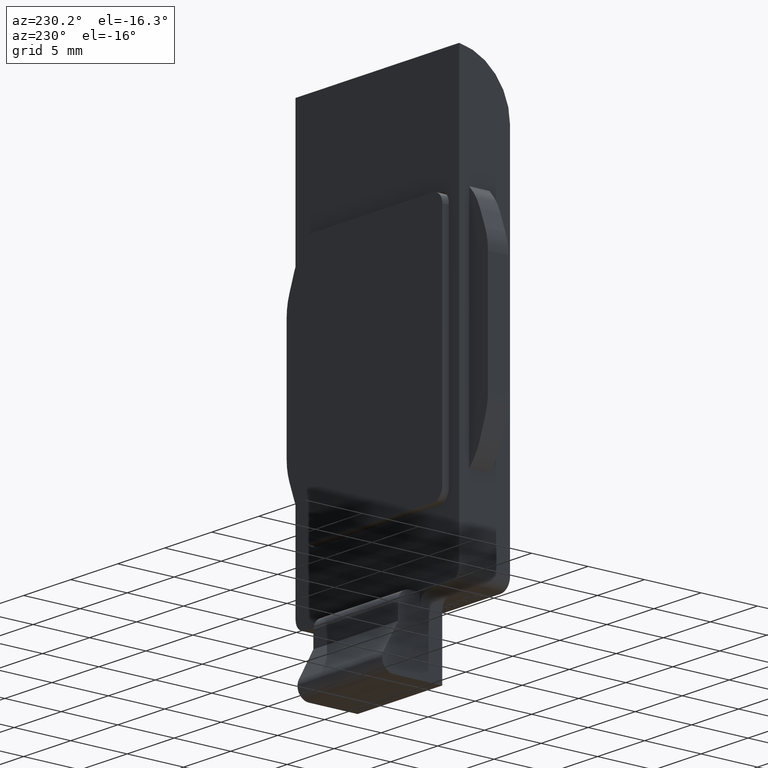
[diagram: clean part render]
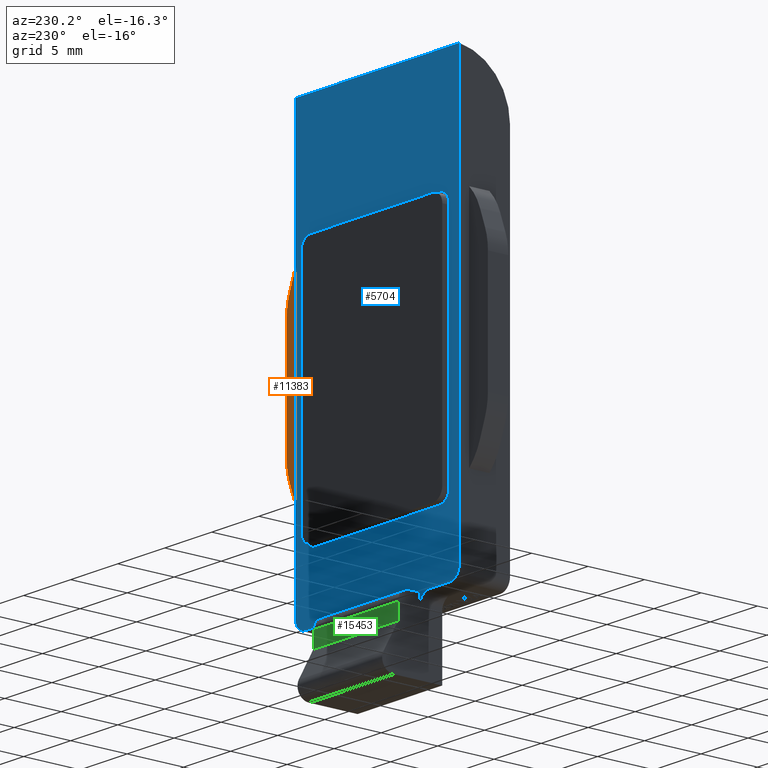
[diagram: same view with three faces highlighted in distinct colors, each labeled with its STEP entity id]
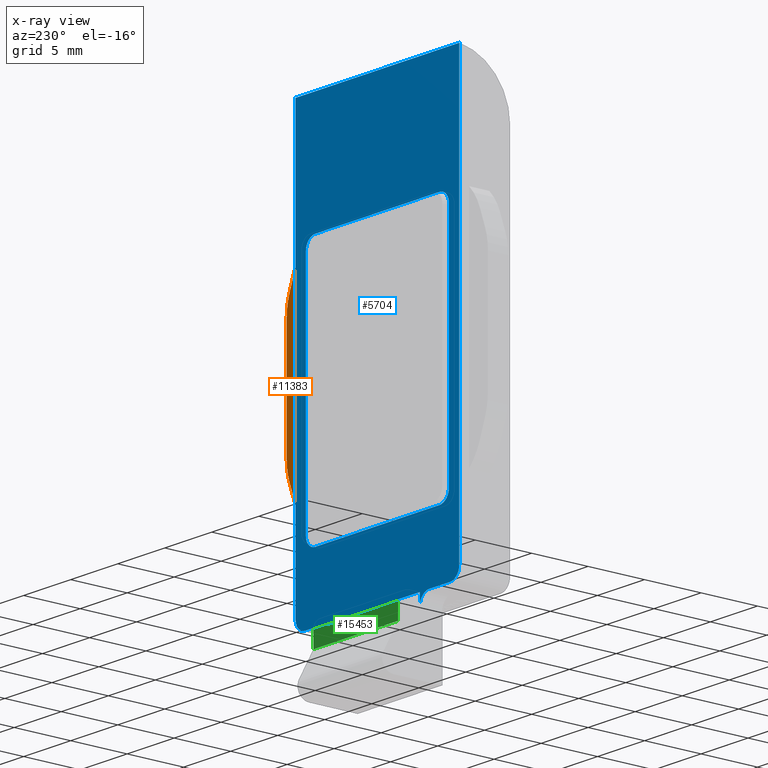
[diagram: x-ray of the same camera — body ghosted, the three highlighted faces saturated]
A machine part, auxiliary view with three faces highlighted in distinct colors.
The next image is the same camera in x-ray (body ghosted, the three faces saturated) — at least one of them is partly hidden behind the body in this view.
Their STEP definitions:

[orange] entity #11383 — the highlighted planar face has unit normal (0, -1, -0).
#83 = CARTESIAN_POINT ( 'NONE',  ( 9.865246063324173420, 3.624999999999998224, 26.17225146263577429 ) ) ;
#1169 = DIRECTION ( 'NONE',  ( 0.000000000000000000, -1.000000000000000000, -1.301042606982605321E-16 ) ) ;
#1218 = EDGE_CURVE ( 'NONE', #3985, #2521, #13917, .T. ) ;
#1343 = VERTEX_POINT ( 'NONE', #1386 ) ;
#1386 = CARTESIAN_POINT ( 'NONE',  ( 8.699999999999999289, 3.624999999999998224, 28.00000000000000000 ) ) ;
#1539 = CIRCLE ( 'NONE', #3640, 5.000000000000000000 ) ;
#1601 = CARTESIAN_POINT ( 'NONE',  ( 10.39846310392953654, 3.624999999999998668, 24.70724968390413068 ) ) ;
#1637 = DIRECTION ( 'NONE',  ( -0.000000000000000000, 1.000000000000000000, 1.301042606982605321E-16 ) ) ;
#2389 = ORIENTED_EDGE ( 'NONE', *, *, #11786, .F. ) ;
#2521 = VERTEX_POINT ( 'NONE', #4234 ) ;
#3001 = CIRCLE ( 'NONE', #5503, 4.999999999999999112 ) ;
#3315 = CARTESIAN_POINT ( 'NONE',  ( 8.699999999999999289, 3.625000000000000444, 8.000000000000000000 ) ) ;
#3610 = FACE_OUTER_BOUND ( 'NONE', #8569, .T. ) ;
#3640 = AXIS2_PLACEMENT_3D ( 'NONE', #5260, #8822, #15218 ) ;
#3739 = CARTESIAN_POINT ( 'NONE',  ( 10.69999999999999929, 3.624999999999999556, 13.00285103272426213 ) ) ;
#3908 = DIRECTION ( 'NONE',  ( -5.377642775528101204E-15, 1.734723475976806848E-16, -1.000000000000000000 ) ) ;
#3985 = VERTEX_POINT ( 'NONE', #11925 ) ;
#4059 = LINE ( 'NONE', #11241, #13192 ) ;
#4127 = CARTESIAN_POINT ( 'NONE',  ( 5.699999999999999289, 3.624999999999999556, 13.00285103272426213 ) ) ;
#4187 = VERTEX_POINT ( 'NONE', #83 ) ;
#4188 = AXIS2_PLACEMENT_3D ( 'NONE', #4981, #1169, #13856 ) ;
#4234 = CARTESIAN_POINT ( 'NONE',  ( 9.865246063324162762, 3.625000000000000444, 9.827748537364218606 ) ) ;
#4981 = CARTESIAN_POINT ( 'NONE',  ( 10.69999999999999929, 3.625000000000000444, 8.000000000000000000 ) ) ;
#5141 = CARTESIAN_POINT ( 'NONE',  ( 5.699999999999999289, 3.624999999999998668, 22.99714896727577695 ) ) ;
#5251 = DIRECTION ( 'NONE',  ( -0.000000000000000000, 1.000000000000000000, 1.301042606982605321E-16 ) ) ;
#5260 = CARTESIAN_POINT ( 'NONE',  ( 5.166782959394620178, 3.625000000000000000, 11.53784925399256700 ) ) ;
#5503 = AXIS2_PLACEMENT_3D ( 'NONE', #4127, #1637, #14232 ) ;
#5765 = ORIENTED_EDGE ( 'NONE', *, *, #8942, .T. ) ;
#6157 = EDGE_CURVE ( 'NONE', #2521, #10023, #1539, .T. ) ;
#6199 = CIRCLE ( 'NONE', #15238, 5.000000000000000888 ) ;
#6261 = ORIENTED_EDGE ( 'NONE', *, *, #10766, .T. ) ;
#7004 = VERTEX_POINT ( 'NONE', #10888 ) ;
#7588 = VECTOR ( 'NONE', #11263, 999.9999999999998863 ) ;
#7645 = DIRECTION ( 'NONE',  ( 0.3420201433256713219, 1.222580137109613705E-16, -0.9396926207859073177 ) ) ;
#7782 = LINE ( 'NONE', #7807, #15889 ) ;
#7807 = CARTESIAN_POINT ( 'NONE',  ( 10.69999999999999929, 3.625000000000000444, 8.000000000000000000 ) ) ;
#8569 = EDGE_LOOP ( 'NONE', ( #9550, #8887, #6261, #11811, #5765, #12422, #2389, #9355 ) ) ;
#8652 = EDGE_CURVE ( 'NONE', #1343, #4187, #14574, .T. ) ;
#8663 = CARTESIAN_POINT ( 'NONE',  ( 10.69999999999999929, 3.625000000000000000, 12.12121612918193314 ) ) ;
#8822 = DIRECTION ( 'NONE',  ( -0.000000000000000000, 1.000000000000000000, 1.301042606982605321E-16 ) ) ;
#8887 = ORIENTED_EDGE ( 'NONE', *, *, #6157, .T. ) ;
#8942 = EDGE_CURVE ( 'NONE', #4187, #14397, #4059, .T. ) ;
#9355 = ORIENTED_EDGE ( 'NONE', *, *, #13476, .T. ) ;
#9550 = ORIENTED_EDGE ( 'NONE', *, *, #1218, .T. ) ;
#9888 = CARTESIAN_POINT ( 'NONE',  ( 8.699999999999999289, 3.625000000000000444, 8.000000000000000000 ) ) ;
#10023 = VERTEX_POINT ( 'NONE', #3315 ) ;
#10378 = VECTOR ( 'NONE', #12434, 1000.000000000000000 ) ;
#10562 = LINE ( 'NONE', #9888, #10378 ) ;
#10766 = EDGE_CURVE ( 'NONE', #10023, #1343, #10562, .T. ) ;
#10888 = CARTESIAN_POINT ( 'NONE',  ( 10.69999999999999929, 3.624999999999998668, 22.99714896727577695 ) ) ;
#10923 = PLANE ( 'NONE',  #4188 ) ;
#11241 = CARTESIAN_POINT ( 'NONE',  ( 10.69999999999999929, 3.624999999999998668, 23.87878387081810772 ) ) ;
#11263 = DIRECTION ( 'NONE',  ( -0.3420201433256697676, 1.222580137109614445E-16, -0.9396926207859080948 ) ) ;
#11383 = ADVANCED_FACE ( 'NONE', ( #3610 ), #10923, .F. ) ;
#11739 = EDGE_CURVE ( 'NONE', #14397, #7004, #6199, .T. ) ;
#11786 = EDGE_CURVE ( 'NONE', #13355, #7004, #7782, .T. ) ;
#11811 = ORIENTED_EDGE ( 'NONE', *, *, #8652, .T. ) ;
#11925 = CARTESIAN_POINT ( 'NONE',  ( 10.39846310392954010, 3.625000000000000000, 11.29275031609591196 ) ) ;
#12422 = ORIENTED_EDGE ( 'NONE', *, *, #11739, .T. ) ;
#12434 = DIRECTION ( 'NONE',  ( 0.000000000000000000, -1.301042606982605321E-16, 1.000000000000000000 ) ) ;
#12818 = AXIS2_PLACEMENT_3D ( 'NONE', #14255, #14205, #13083 ) ;
#13083 = DIRECTION ( 'NONE',  ( 1.734723475976806700E-15, 8.673617379884034239E-17, -1.000000000000000000 ) ) ;
#13192 = VECTOR ( 'NONE', #7645, 1000.000000000000114 ) ;
#13355 = VERTEX_POINT ( 'NONE', #3739 ) ;
#13476 = EDGE_CURVE ( 'NONE', #13355, #3985, #3001, .T. ) ;
#13856 = DIRECTION ( 'NONE',  ( 0.000000000000000000, 1.301042606982605321E-16, -1.000000000000000000 ) ) ;
#13917 = LINE ( 'NONE', #8663, #7588 ) ;
#14205 = DIRECTION ( 'NONE',  ( -0.000000000000000000, 1.000000000000000000, 1.301042606982605321E-16 ) ) ;
#14232 = DIRECTION ( 'NONE',  ( -2.602085213965211036E-15, 1.734723475976807341E-16, -1.000000000000000000 ) ) ;
#14255 = CARTESIAN_POINT ( 'NONE',  ( 5.166782959394637054, 3.624999999999998668, 24.46215074600741701 ) ) ;
#14397 = VERTEX_POINT ( 'NONE', #1601 ) ;
#14574 = CIRCLE ( 'NONE', #12818, 5.000000000000000888 ) ;
#15218 = DIRECTION ( 'NONE',  ( 1.734723475976807094E-15, 8.673617379884035472E-17, -1.000000000000000000 ) ) ;
#15238 = AXIS2_PLACEMENT_3D ( 'NONE', #5141, #5251, #3908 ) ;
#15261 = DIRECTION ( 'NONE',  ( 0.000000000000000000, -1.301042606982605321E-16, 1.000000000000000000 ) ) ;
#15889 = VECTOR ( 'NONE', #15261, 1000.000000000000000 ) ;

[blue] entity #5704 — the highlighted planar face has unit normal (0, -1, -0).
#9 = CARTESIAN_POINT ( 'NONE',  ( 7.600000000000005862, 4.499999999999995559, 27.89999999999999858 ) ) ;
#127 = DIRECTION ( 'NONE',  ( 0.000000000000000000, 0.000000000000000000, -1.000000000000000000 ) ) ;
#235 = CARTESIAN_POINT ( 'NONE',  ( 7.600000000000000533, 4.499999999999999112, 5.700000000000001066 ) ) ;
#241 = CARTESIAN_POINT ( 'NONE',  ( 4.500000000000000000, 4.500000000000000000, -1.000000000000000000 ) ) ;
#266 = CARTESIAN_POINT ( 'NONE',  ( -7.599999999999998757, 4.499999999999995559, 26.89999999999999858 ) ) ;
#279 = ORIENTED_EDGE ( 'NONE', *, *, #13279, .T. ) ;
#485 = DIRECTION ( 'NONE',  ( -1.000000000000000000, -0.000000000000000000, -0.000000000000000000 ) ) ;
#492 = AXIS2_PLACEMENT_3D ( 'NONE', #2516, #5008, #13878 ) ;
#676 = CARTESIAN_POINT ( 'NONE',  ( 7.600000000000000533, 4.499999999999999112, 6.700000000000001066 ) ) ;
#685 = EDGE_CURVE ( 'NONE', #13032, #13445, #1412, .T. ) ;
#687 = ORIENTED_EDGE ( 'NONE', *, *, #5937, .T. ) ;
#745 = EDGE_CURVE ( 'NONE', #9134, #3507, #11533, .T. ) ;
#824 = CIRCLE ( 'NONE', #4680, 1.000000000000000000 ) ;
#1049 = DIRECTION ( 'NONE',  ( 1.860270795296047257E-32, 1.141265444721583757E-16, -1.000000000000000000 ) ) ;
#1190 = CARTESIAN_POINT ( 'NONE',  ( 7.600000000000005862, 4.499999999999995559, 26.89999999999999858 ) ) ;
#1412 = LINE ( 'NONE', #13880, #2222 ) ;
#1568 = ORIENTED_EDGE ( 'NONE', *, *, #6465, .T. ) ;
#1650 = EDGE_CURVE ( 'NONE', #13445, #2274, #824, .T. ) ;
#1667 = EDGE_CURVE ( 'NONE', #3625, #5098, #7963, .T. ) ;
#1765 = EDGE_CURVE ( 'NONE', #11672, #5710, #4165, .T. ) ;
#1816 = ORIENTED_EDGE ( 'NONE', *, *, #1667, .F. ) ;
#1870 = ORIENTED_EDGE ( 'NONE', *, *, #15098, .T. ) ;
#2126 = FACE_OUTER_BOUND ( 'NONE', #6918, .T. ) ;
#2162 = AXIS2_PLACEMENT_3D ( 'NONE', #6688, #6906, #8156 ) ;
#2222 = VECTOR ( 'NONE', #10112, 1000.000000000000000 ) ;
#2243 = EDGE_CURVE ( 'NONE', #10164, #9134, #3769, .T. ) ;
#2252 = ORIENTED_EDGE ( 'NONE', *, *, #9258, .T. ) ;
#2274 = VERTEX_POINT ( 'NONE', #8230 ) ;
#2380 = LINE ( 'NONE', #5187, #12116 ) ;
#2480 = DIRECTION ( 'NONE',  ( 0.000000000000000000, 0.000000000000000000, -1.000000000000000000 ) ) ;
#2516 = CARTESIAN_POINT ( 'NONE',  ( -6.599999999999997868, 4.499999999999997335, 26.89999999999999858 ) ) ;
#2745 = DIRECTION ( 'NONE',  ( 1.000000000000000000, 0.000000000000000000, -1.141265444721583757E-16 ) ) ;
#3085 = CARTESIAN_POINT ( 'NONE',  ( -4.500000000000000000, 4.500000000000000000, -1.000000000000000000 ) ) ;
#3507 = VERTEX_POINT ( 'NONE', #15636 ) ;
#3573 = CARTESIAN_POINT ( 'NONE',  ( -7.599999999999998757, 4.499999999999999112, 6.700000000000004619 ) ) ;
#3625 = VERTEX_POINT ( 'NONE', #3085 ) ;
#3632 = DIRECTION ( 'NONE',  ( -1.000000000000000000, 0.000000000000000000, 2.282530889443166529E-16 ) ) ;
#3639 = EDGE_CURVE ( 'NONE', #6101, #12811, #5538, .T. ) ;
#3642 = LINE ( 'NONE', #9832, #10202 ) ;
#3769 = CIRCLE ( 'NONE', #4586, 1.000000000000000000 ) ;
#3806 = EDGE_CURVE ( 'NONE', #12193, #7790, #11697, .T. ) ;
#3851 = VERTEX_POINT ( 'NONE', #11496 ) ;
#3882 = DIRECTION ( 'NONE',  ( 0.000000000000000000, 0.000000000000000000, -1.000000000000000000 ) ) ;
#3902 = CIRCLE ( 'NONE', #13009, 1.000000000000000000 ) ;
#3981 = LINE ( 'NONE', #15681, #5400 ) ;
#4165 = LINE ( 'NONE', #235, #10740 ) ;
#4221 = ORIENTED_EDGE ( 'NONE', *, *, #2243, .T. ) ;
#4231 = CARTESIAN_POINT ( 'NONE',  ( -7.699999999999998401, 4.500000000000000000, 0.000000000000000000 ) ) ;
#4312 = DIRECTION ( 'NONE',  ( 0.000000000000000000, -1.000000000000000000, -1.141265444721583757E-16 ) ) ;
#4586 = AXIS2_PLACEMENT_3D ( 'NONE', #13381, #8403, #5792 ) ;
#4613 = CARTESIAN_POINT ( 'NONE',  ( 5.500000000000000000, 4.500000000000000000, 0.000000000000000000 ) ) ;
#4680 = AXIS2_PLACEMENT_3D ( 'NONE', #4798, #7494, #2480 ) ;
#4798 = CARTESIAN_POINT ( 'NONE',  ( -7.699999999999998401, 4.500000000000000000, 1.000000000000000000 ) ) ;
#4978 = EDGE_CURVE ( 'NONE', #15947, #7790, #7324, .T. ) ;
#5008 = DIRECTION ( 'NONE',  ( 0.000000000000000000, -1.000000000000000000, -1.141265444721583757E-16 ) ) ;
#5022 = ORIENTED_EDGE ( 'NONE', *, *, #8925, .T. ) ;
#5098 = VERTEX_POINT ( 'NONE', #11418 ) ;
#5114 = ORIENTED_EDGE ( 'NONE', *, *, #6492, .T. ) ;
#5146 = DIRECTION ( 'NONE',  ( -0.000000000000000000, 1.000000000000000000, 1.141265444721583757E-16 ) ) ;
#5187 = CARTESIAN_POINT ( 'NONE',  ( -8.699999999999999289, 4.500000000000000000, 0.000000000000000000 ) ) ;
#5288 = CARTESIAN_POINT ( 'NONE',  ( -7.599999999999998757, 4.499999999999999112, 5.700000000000002842 ) ) ;
#5400 = VECTOR ( 'NONE', #485, 1000.000000000000000 ) ;
#5538 = LINE ( 'NONE', #14708, #10099 ) ;
#5697 = CARTESIAN_POINT ( 'NONE',  ( 6.600000000000005862, 4.499999999999995559, 27.89999999999999858 ) ) ;
#5704 = ADVANCED_FACE ( 'NONE', ( #2126, #15999 ), #8905, .F. ) ;
#5710 = VERTEX_POINT ( 'NONE', #1190 ) ;
#5727 = ORIENTED_EDGE ( 'NONE', *, *, #685, .T. ) ;
#5749 = EDGE_CURVE ( 'NONE', #3625, #13032, #3902, .T. ) ;
#5792 = DIRECTION ( 'NONE',  ( 0.000000000000000000, 0.000000000000000000, -1.000000000000000000 ) ) ;
#5937 = EDGE_CURVE ( 'NONE', #5710, #13745, #9271, .T. ) ;
#6101 = VERTEX_POINT ( 'NONE', #15797 ) ;
#6247 = DIRECTION ( 'NONE',  ( 0.000000000000000000, 1.562813942321448017E-16, -1.000000000000000000 ) ) ;
#6304 = DIRECTION ( 'NONE',  ( 0.000000000000000000, 1.141265444721583757E-16, -1.000000000000000000 ) ) ;
#6438 = CARTESIAN_POINT ( 'NONE',  ( 8.699999999999999289, 4.500000000000000000, 0.000000000000000000 ) ) ;
#6465 = EDGE_CURVE ( 'NONE', #14130, #12294, #12440, .T. ) ;
#6482 = DIRECTION ( 'NONE',  ( 0.000000000000000000, -1.141265444721583757E-16, 1.000000000000000000 ) ) ;
#6492 = EDGE_CURVE ( 'NONE', #3507, #11672, #15005, .T. ) ;
#6688 = CARTESIAN_POINT ( 'NONE',  ( 6.600000000000001421, 4.499999999999999112, 6.700000000000001066 ) ) ;
#6722 = CARTESIAN_POINT ( 'NONE',  ( 4.500000000000000000, 4.500000000000000000, 0.000000000000000000 ) ) ;
#6905 = AXIS2_PLACEMENT_3D ( 'NONE', #8920, #5146, #127 ) ;
#6906 = DIRECTION ( 'NONE',  ( 0.000000000000000000, -1.000000000000000000, -1.141265444721583757E-16 ) ) ;
#6918 = EDGE_LOOP ( 'NONE', ( #5727, #9658, #1870, #15368, #8246, #279, #7593, #15605, #7848, #2252, #1816, #15790 ) ) ;
#6986 = CARTESIAN_POINT ( 'NONE',  ( -6.599999999999999645, 4.499999999999999112, 5.700000000000002842 ) ) ;
#7324 = LINE ( 'NONE', #13847, #11667 ) ;
#7429 = VECTOR ( 'NONE', #6247, 1000.000000000000000 ) ;
#7469 = CARTESIAN_POINT ( 'NONE',  ( 5.500000000000000000, 4.500000000000000000, -1.000000000000000000 ) ) ;
#7494 = DIRECTION ( 'NONE',  ( -0.000000000000000000, 1.000000000000000000, 1.141265444721583757E-16 ) ) ;
#7516 = DIRECTION ( 'NONE',  ( 0.000000000000000000, -1.000000000000000000, -1.141265444721583757E-16 ) ) ;
#7593 = ORIENTED_EDGE ( 'NONE', *, *, #13337, .T. ) ;
#7603 = AXIS2_PLACEMENT_3D ( 'NONE', #8110, #4312, #11774 ) ;
#7790 = VERTEX_POINT ( 'NONE', #241 ) ;
#7847 = LINE ( 'NONE', #9, #8442 ) ;
#7848 = ORIENTED_EDGE ( 'NONE', *, *, #4978, .F. ) ;
#7851 = CARTESIAN_POINT ( 'NONE',  ( -5.500000000000000888, 4.500000000000000000, -1.000000000000000000 ) ) ;
#7963 = LINE ( 'NONE', #12625, #8363 ) ;
#8110 = CARTESIAN_POINT ( 'NONE',  ( 6.600000000000005862, 4.499999999999997335, 26.89999999999999858 ) ) ;
#8156 = DIRECTION ( 'NONE',  ( 0.000000000000000000, 0.000000000000000000, -1.000000000000000000 ) ) ;
#8159 = VECTOR ( 'NONE', #2745, 1000.000000000000000 ) ;
#8230 = CARTESIAN_POINT ( 'NONE',  ( -8.699999999999999289, 4.500000000000000000, 1.000000000000000000 ) ) ;
#8246 = ORIENTED_EDGE ( 'NONE', *, *, #3639, .F. ) ;
#8353 = DIRECTION ( 'NONE',  ( 0.000000000000000000, -1.141265444721583757E-16, 1.000000000000000000 ) ) ;
#8363 = VECTOR ( 'NONE', #15110, 1000.000000000000000 ) ;
#8403 = DIRECTION ( 'NONE',  ( 0.000000000000000000, -1.000000000000000000, -1.141265444721583757E-16 ) ) ;
#8410 = ORIENTED_EDGE ( 'NONE', *, *, #10395, .T. ) ;
#8442 = VECTOR ( 'NONE', #3632, 1000.000000000000000 ) ;
#8453 = AXIS2_PLACEMENT_3D ( 'NONE', #8794, #13883, #6304 ) ;
#8794 = CARTESIAN_POINT ( 'NONE',  ( 8.699999999999999289, 4.500000000000000000, 0.000000000000000000 ) ) ;
#8905 = PLANE ( 'NONE',  #8453 ) ;
#8920 = CARTESIAN_POINT ( 'NONE',  ( 7.699999999999999289, 4.500000000000000000, 1.000000000000000000 ) ) ;
#8925 = EDGE_CURVE ( 'NONE', #13745, #14130, #7847, .T. ) ;
#9034 = DIRECTION ( 'NONE',  ( -1.000000000000000000, -0.000000000000000000, -0.000000000000000000 ) ) ;
#9071 = DIRECTION ( 'NONE',  ( 0.000000000000000000, -1.000000000000000000, -1.141265444721583757E-16 ) ) ;
#9134 = VERTEX_POINT ( 'NONE', #6986 ) ;
#9258 = EDGE_CURVE ( 'NONE', #15947, #5098, #3642, .T. ) ;
#9271 = CIRCLE ( 'NONE', #7603, 1.000000000000000888 ) ;
#9542 = LINE ( 'NONE', #6438, #14291 ) ;
#9658 = ORIENTED_EDGE ( 'NONE', *, *, #1650, .T. ) ;
#9832 = CARTESIAN_POINT ( 'NONE',  ( 8.699999999999999289, 4.500000000000000000, 0.000000000000000000 ) ) ;
#10099 = VECTOR ( 'NONE', #8353, 1000.000000000000000 ) ;
#10112 = DIRECTION ( 'NONE',  ( -1.000000000000000000, 0.000000000000000000, 0.000000000000000000 ) ) ;
#10164 = VERTEX_POINT ( 'NONE', #3573 ) ;
#10202 = VECTOR ( 'NONE', #11107, 1000.000000000000000 ) ;
#10395 = EDGE_CURVE ( 'NONE', #12294, #10164, #12184, .T. ) ;
#10468 = CARTESIAN_POINT ( 'NONE',  ( -5.500000000000001776, 4.500000000000000000, 0.000000000000000000 ) ) ;
#10740 = VECTOR ( 'NONE', #12913, 1000.000000000000000 ) ;
#11107 = DIRECTION ( 'NONE',  ( -1.000000000000000000, -0.000000000000000000, -0.000000000000000000 ) ) ;
#11418 = CARTESIAN_POINT ( 'NONE',  ( -4.500000000000000000, 4.500000000000000000, 0.000000000000000000 ) ) ;
#11496 = CARTESIAN_POINT ( 'NONE',  ( -8.699999999999999289, 4.499999999999995559, 38.00000000000000000 ) ) ;
#11533 = LINE ( 'NONE', #5288, #8159 ) ;
#11667 = VECTOR ( 'NONE', #1049, 1000.000000000000000 ) ;
#11672 = VERTEX_POINT ( 'NONE', #676 ) ;
#11697 = CIRCLE ( 'NONE', #15624, 1.000000000000000000 ) ;
#11774 = DIRECTION ( 'NONE',  ( 0.000000000000000000, 0.000000000000000000, -1.000000000000000000 ) ) ;
#12116 = VECTOR ( 'NONE', #6482, 1000.000000000000000 ) ;
#12184 = LINE ( 'NONE', #16306, #7429 ) ;
#12193 = VERTEX_POINT ( 'NONE', #4613 ) ;
#12294 = VERTEX_POINT ( 'NONE', #266 ) ;
#12440 = CIRCLE ( 'NONE', #492, 1.000000000000000888 ) ;
#12534 = CIRCLE ( 'NONE', #6905, 1.000000000000000000 ) ;
#12625 = CARTESIAN_POINT ( 'NONE',  ( -4.500000000000000888, 4.500000000000000000, -2.455557449790782762E-31 ) ) ;
#12782 = DIRECTION ( 'NONE',  ( 0.000000000000000000, 0.000000000000000000, -1.000000000000000000 ) ) ;
#12811 = VERTEX_POINT ( 'NONE', #15015 ) ;
#12913 = DIRECTION ( 'NONE',  ( 2.344220913482172149E-16, -1.562813942321448017E-16, 1.000000000000000000 ) ) ;
#13009 = AXIS2_PLACEMENT_3D ( 'NONE', #7851, #9071, #12782 ) ;
#13032 = VERTEX_POINT ( 'NONE', #10468 ) ;
#13279 = EDGE_CURVE ( 'NONE', #6101, #15134, #12534, .T. ) ;
#13337 = EDGE_CURVE ( 'NONE', #15134, #12193, #9542, .T. ) ;
#13381 = CARTESIAN_POINT ( 'NONE',  ( -6.599999999999998757, 4.499999999999999112, 6.700000000000004619 ) ) ;
#13445 = VERTEX_POINT ( 'NONE', #4231 ) ;
#13745 = VERTEX_POINT ( 'NONE', #5697 ) ;
#13847 = CARTESIAN_POINT ( 'NONE',  ( 4.500000000000000000, 4.499999999999999112, 6.779035550246952369 ) ) ;
#13878 = DIRECTION ( 'NONE',  ( 0.000000000000000000, 0.000000000000000000, -1.000000000000000000 ) ) ;
#13880 = CARTESIAN_POINT ( 'NONE',  ( 8.699999999999999289, 4.500000000000000000, 0.000000000000000000 ) ) ;
#13883 = DIRECTION ( 'NONE',  ( 0.000000000000000000, -1.000000000000000000, -1.141265444721583757E-16 ) ) ;
#13963 = EDGE_CURVE ( 'NONE', #12811, #3851, #3981, .T. ) ;
#14130 = VERTEX_POINT ( 'NONE', #14905 ) ;
#14291 = VECTOR ( 'NONE', #9034, 1000.000000000000000 ) ;
#14595 = CARTESIAN_POINT ( 'NONE',  ( 7.699999999999999289, 4.500000000000000000, 0.000000000000000000 ) ) ;
#14708 = CARTESIAN_POINT ( 'NONE',  ( 8.699999999999999289, 4.500000000000000000, 0.000000000000000000 ) ) ;
#14905 = CARTESIAN_POINT ( 'NONE',  ( -6.599999999999997868, 4.499999999999995559, 27.90000000000000213 ) ) ;
#15005 = CIRCLE ( 'NONE', #2162, 1.000000000000000000 ) ;
#15015 = CARTESIAN_POINT ( 'NONE',  ( 8.699999999999999289, 4.499999999999995559, 38.00000000000000000 ) ) ;
#15098 = EDGE_CURVE ( 'NONE', #2274, #3851, #2380, .T. ) ;
#15110 = DIRECTION ( 'NONE',  ( -1.860270795296047804E-32, -1.141265444721583757E-16, 1.000000000000000000 ) ) ;
#15134 = VERTEX_POINT ( 'NONE', #14595 ) ;
#15327 = EDGE_LOOP ( 'NONE', ( #15361, #5114, #16388, #687, #5022, #1568, #8410, #4221 ) ) ;
#15361 = ORIENTED_EDGE ( 'NONE', *, *, #745, .T. ) ;
#15368 = ORIENTED_EDGE ( 'NONE', *, *, #13963, .F. ) ;
#15605 = ORIENTED_EDGE ( 'NONE', *, *, #3806, .T. ) ;
#15624 = AXIS2_PLACEMENT_3D ( 'NONE', #7469, #7516, #3882 ) ;
#15636 = CARTESIAN_POINT ( 'NONE',  ( 6.599999999999997868, 4.499999999999999112, 5.700000000000001066 ) ) ;
#15681 = CARTESIAN_POINT ( 'NONE',  ( 8.699999999999999289, 4.499999999999995559, 38.00000000000000000 ) ) ;
#15790 = ORIENTED_EDGE ( 'NONE', *, *, #5749, .T. ) ;
#15797 = CARTESIAN_POINT ( 'NONE',  ( 8.699999999999999289, 4.500000000000000000, 1.000000000000000000 ) ) ;
#15947 = VERTEX_POINT ( 'NONE', #6722 ) ;
#15999 = FACE_BOUND ( 'NONE', #15327, .T. ) ;
#16306 = CARTESIAN_POINT ( 'NONE',  ( -7.599999999999998757, 4.499999999999995559, 27.90000000000000213 ) ) ;
#16388 = ORIENTED_EDGE ( 'NONE', *, *, #1765, .T. ) ;

[green] entity #15453 — the highlighted planar face has unit normal (0, -1, 0).
#391 = ORIENTED_EDGE ( 'NONE', *, *, #6234, .T. ) ;
#532 = ORIENTED_EDGE ( 'NONE', *, *, #5587, .T. ) ;
#621 = LINE ( 'NONE', #11797, #9921 ) ;
#992 = FACE_OUTER_BOUND ( 'NONE', #8354, .T. ) ;
#1135 = VERTEX_POINT ( 'NONE', #16060 ) ;
#2483 = EDGE_CURVE ( 'NONE', #12590, #1135, #621, .T. ) ;
#2944 = CARTESIAN_POINT ( 'NONE',  ( 8.699999999999999289, 6.424999999999999822, 0.000000000000000000 ) ) ;
#3275 = ORIENTED_EDGE ( 'NONE', *, *, #3801, .T. ) ;
#3575 = VERTEX_POINT ( 'NONE', #14433 ) ;
#3801 = EDGE_CURVE ( 'NONE', #3575, #1135, #9699, .T. ) ;
#4366 = CARTESIAN_POINT ( 'NONE',  ( 4.500000000000000000, 6.424999999999999822, -2.399999999999999911 ) ) ;
#4675 = VECTOR ( 'NONE', #6864, 1000.000000000000000 ) ;
#5587 = EDGE_CURVE ( 'NONE', #14935, #3575, #11462, .T. ) ;
#6234 = EDGE_CURVE ( 'NONE', #12590, #14935, #15586, .T. ) ;
#6864 = DIRECTION ( 'NONE',  ( -1.000000000000000000, -0.000000000000000000, -0.000000000000000000 ) ) ;
#7673 = CARTESIAN_POINT ( 'NONE',  ( 8.699999999999999289, 6.424999999999999822, -1.000000000000000000 ) ) ;
#7993 = DIRECTION ( 'NONE',  ( 0.000000000000000000, -0.000000000000000000, -1.000000000000000000 ) ) ;
#8354 = EDGE_LOOP ( 'NONE', ( #391, #532, #3275, #10118 ) ) ;
#8953 = DIRECTION ( 'NONE',  ( 1.000000000000000000, -0.000000000000000000, -0.000000000000000000 ) ) ;
#9135 = CARTESIAN_POINT ( 'NONE',  ( 8.699999999999999289, 6.424999999999999822, -2.399999999999999911 ) ) ;
#9293 = DIRECTION ( 'NONE',  ( 0.000000000000000000, 0.000000000000000000, 1.000000000000000000 ) ) ;
#9308 = PLANE ( 'NONE',  #10181 ) ;
#9699 = LINE ( 'NONE', #7673, #14267 ) ;
#9921 = VECTOR ( 'NONE', #9293, 1000.000000000000000 ) ;
#10118 = ORIENTED_EDGE ( 'NONE', *, *, #2483, .F. ) ;
#10181 = AXIS2_PLACEMENT_3D ( 'NONE', #2944, #10639, #7993 ) ;
#10639 = DIRECTION ( 'NONE',  ( 0.000000000000000000, -1.000000000000000000, 0.000000000000000000 ) ) ;
#11174 = CARTESIAN_POINT ( 'NONE',  ( -4.499999999999999112, 6.424999999999999822, -2.399999999999999911 ) ) ;
#11462 = LINE ( 'NONE', #15983, #16399 ) ;
#11797 = CARTESIAN_POINT ( 'NONE',  ( 4.500000000000000000, 6.424999999999999822, 0.000000000000000000 ) ) ;
#12340 = DIRECTION ( 'NONE',  ( 0.000000000000000000, 0.000000000000000000, 1.000000000000000000 ) ) ;
#12590 = VERTEX_POINT ( 'NONE', #4366 ) ;
#14267 = VECTOR ( 'NONE', #8953, 1000.000000000000000 ) ;
#14433 = CARTESIAN_POINT ( 'NONE',  ( -4.499999999999999112, 6.424999999999999822, -1.000000000000000000 ) ) ;
#14935 = VERTEX_POINT ( 'NONE', #11174 ) ;
#15453 = ADVANCED_FACE ( 'NONE', ( #992 ), #9308, .F. ) ;
#15586 = LINE ( 'NONE', #9135, #4675 ) ;
#15983 = CARTESIAN_POINT ( 'NONE',  ( -4.499999999999999112, 6.424999999999999822, 0.000000000000000000 ) ) ;
#16060 = CARTESIAN_POINT ( 'NONE',  ( 4.500000000000000000, 6.424999999999999822, -1.000000000000000000 ) ) ;
#16399 = VECTOR ( 'NONE', #12340, 1000.000000000000000 ) ;